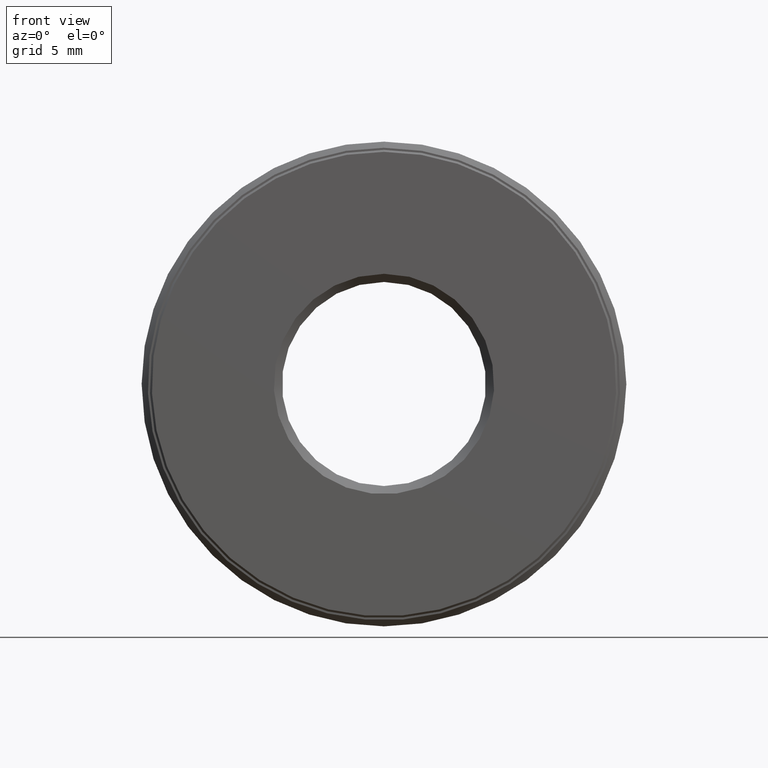
[diagram: clean part render]
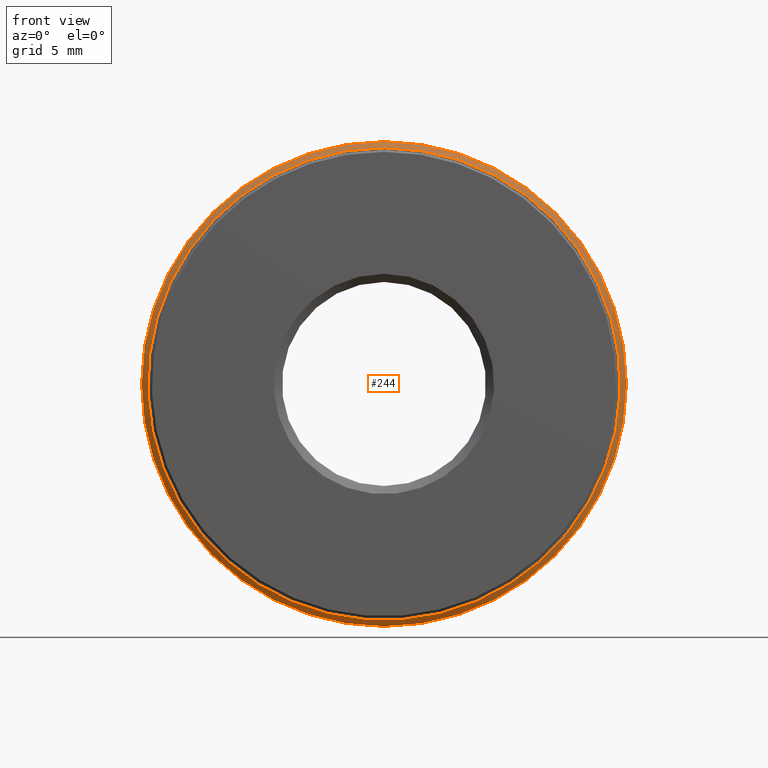
[diagram: same view with one face highlighted and labeled with its STEP entity id]
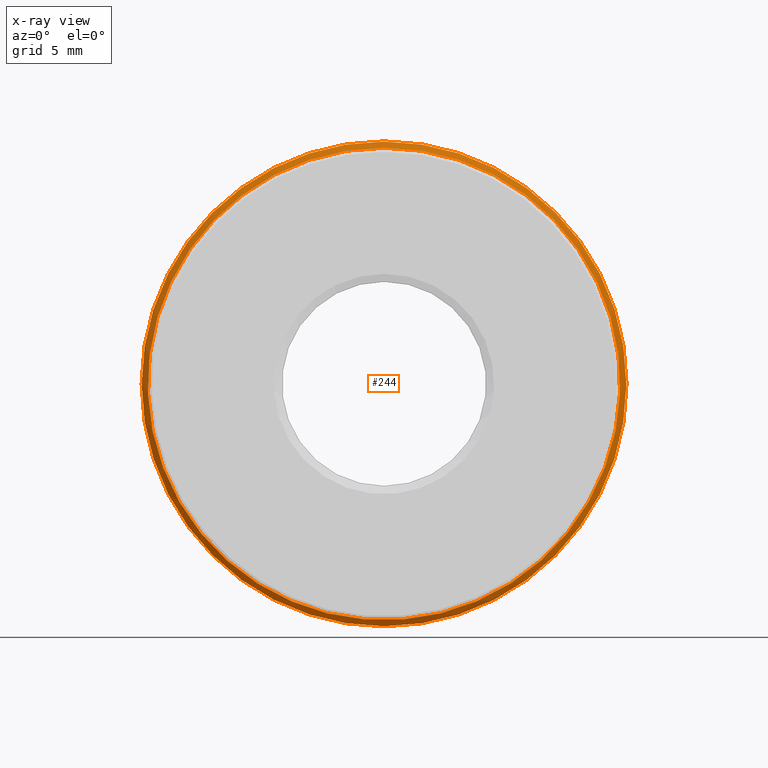
[diagram: x-ray of the same camera — body ghosted, the highlighted face saturated]
A machine part, front view. The second image highlights one B-rep face of the part: STEP entity #244.
The next image is the same camera in x-ray: the body ghosted, the highlighted face saturated — about 0% of this face is hidden behind the body in this view.
In plain terms, the highlighted conical surface has half-angle 45 deg.
Its self-contained STEP definition (entity closure, byte-faithful):
#80 = AXIS2_PLACEMENT_3D ( 'NONE', #158, #213, #485 ) ;
#93 = DIRECTION ( 'NONE',  ( -0.0000000000000000000, 1.000000000000000000, -0.0000000000000000000 ) ) ;
#98 = EDGE_CURVE ( 'NONE', #111, #111, #291, .T. ) ;
#111 = VERTEX_POINT ( 'NONE', #459 ) ;
#124 = ORIENTED_EDGE ( 'NONE', *, *, #98, .T. ) ;
#134 = CIRCLE ( 'NONE', #186, 0.5937500000000002200 ) ;
#158 = CARTESIAN_POINT ( 'NONE',  ( 0.0000000000000000000, 3.308097179827818800E-016, 0.0000000000000000000 ) ) ;
#185 = DIRECTION ( 'NONE',  ( -0.0000000000000000000, 1.000000000000000000, -0.0000000000000000000 ) ) ;
#186 = AXIS2_PLACEMENT_3D ( 'NONE', #230, #185, #453 ) ;
#213 = DIRECTION ( 'NONE',  ( -0.0000000000000000000, 1.000000000000000000, -0.0000000000000000000 ) ) ;
#230 = CARTESIAN_POINT ( 'NONE',  ( 0.0000000000000000000, 0.01500000000000001200, 0.0000000000000000000 ) ) ;
#234 = AXIS2_PLACEMENT_3D ( 'NONE', #245, #93, #337 ) ;
#241 = FACE_BOUND ( 'NONE', #445, .T. ) ;
#244 = ADVANCED_FACE ( 'NONE', ( #311, #241 ), #530, .T. ) ;
#245 = CARTESIAN_POINT ( 'NONE',  ( 0.0000000000000000000, 3.308097179827818800E-016, 0.0000000000000000000 ) ) ;
#289 = EDGE_LOOP ( 'NONE', ( #509 ) ) ;
#291 = CIRCLE ( 'NONE', #234, 0.5787500000000004300 ) ;
#311 = FACE_OUTER_BOUND ( 'NONE', #289, .T. ) ;
#337 = DIRECTION ( 'NONE',  ( 0.0000000000000000000, 0.0000000000000000000, 1.000000000000000000 ) ) ;
#434 = VERTEX_POINT ( 'NONE', #606 ) ;
#445 = EDGE_LOOP ( 'NONE', ( #124 ) ) ;
#453 = DIRECTION ( 'NONE',  ( 0.0000000000000000000, 0.0000000000000000000, 1.000000000000000000 ) ) ;
#459 = CARTESIAN_POINT ( 'NONE',  ( 0.0000000000000000000, 3.308097179827818800E-016, 0.5787500000000004300 ) ) ;
#480 = EDGE_CURVE ( 'NONE', #434, #434, #134, .T. ) ;
#485 = DIRECTION ( 'NONE',  ( 0.0000000000000000000, 0.0000000000000000000, 1.000000000000000000 ) ) ;
#509 = ORIENTED_EDGE ( 'NONE', *, *, #480, .F. ) ;
#530 = CONICAL_SURFACE ( 'NONE', #80, 0.5787500000000004300, 0.7853981633974490600 ) ;
#606 = CARTESIAN_POINT ( 'NONE',  ( 0.0000000000000000000, 0.01500000000000001200, 0.5937500000000002200 ) ) ;